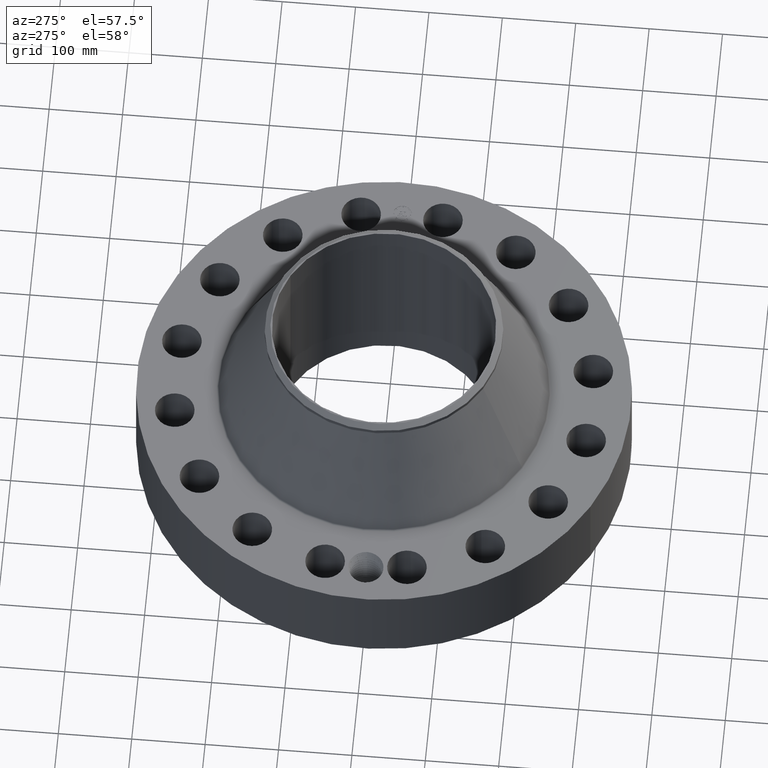
[diagram: clean part render]
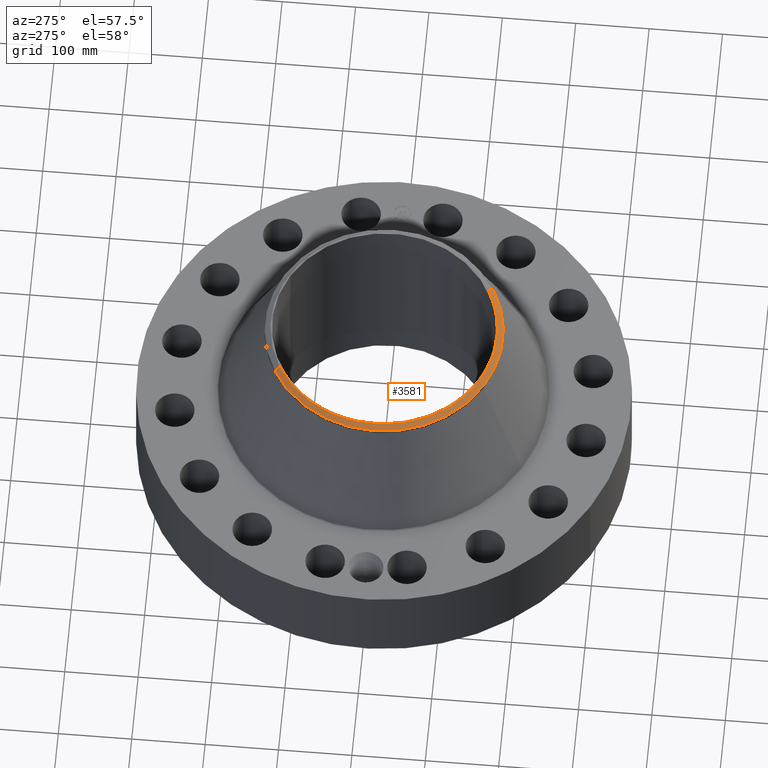
[diagram: same view with one face highlighted and labeled with its STEP entity id]
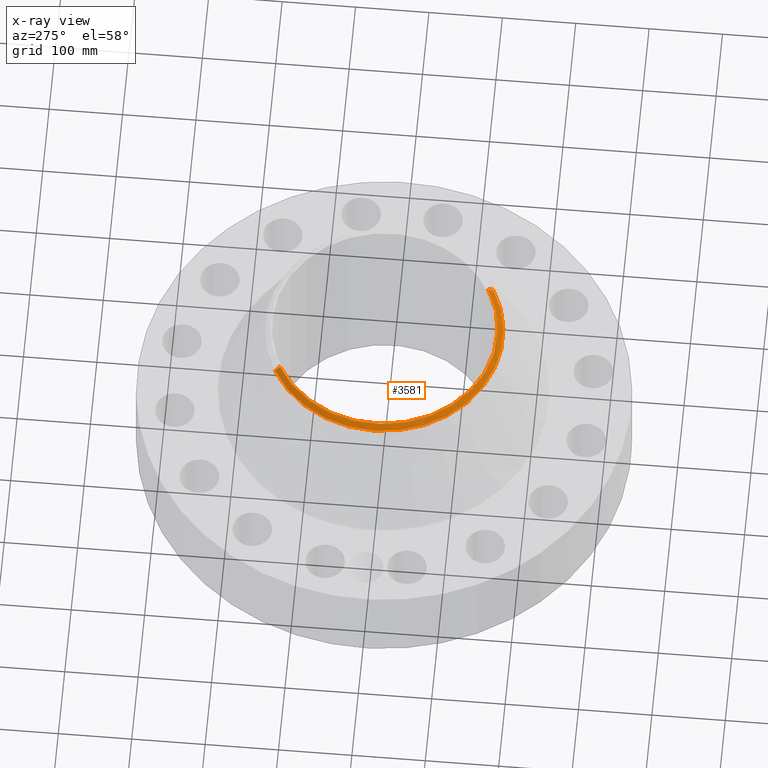
[diagram: x-ray of the same camera — body ghosted, the highlighted face saturated]
A machine part, auxiliary view. The second image highlights one B-rep face of the part: STEP entity #3581.
The next image is the same camera in x-ray: the body ghosted, the highlighted face saturated — about 0% of this face is hidden behind the body in this view.
In plain terms, the highlighted conical surface has half-angle 52.5 deg.
Its self-contained STEP definition (entity closure, byte-faithful):
#2710=AXIS2_PLACEMENT_3D('Circle Axis2P3D',#2708,#2709,$) ;
#3546=AXIS2_PLACEMENT_3D('Cone Axis2P3D',#3543,#3544,#3545) ;
#3564=AXIS2_PLACEMENT_3D('Circle Axis2P3D',#3562,#3563,$) ;
#3571=AXIS2_PLACEMENT_3D('Circle Axis2P3D',#3569,#3570,$) ;
#2703=CARTESIAN_POINT('Vertex',(2.91430327405,-5.33459636049,11.37)) ;
#2705=CARTESIAN_POINT('Vertex',(-2.91430327405,5.33459636049,11.37)) ;
#2708=CARTESIAN_POINT('Axis2P3D Location',(0.,0.,11.37)) ;
#3543=CARTESIAN_POINT('Axis2P3D Location',(0.,0.,11.37)) ;
#3548=CARTESIAN_POINT('Line Origine',(2.98532054133,-5.46459259628,11.2563359137)) ;
#3552=CARTESIAN_POINT('Vertex',(3.05633780861,-5.59458883207,11.1426718274)) ;
#3555=CARTESIAN_POINT('Line Origine',(-2.98532054133,5.46459259628,11.2563359137)) ;
#3559=CARTESIAN_POINT('Vertex',(-3.05633780861,5.59458883207,11.1426718274)) ;
#3562=CARTESIAN_POINT('Axis2P3D Location',(0.,0.,11.1426718274)) ;
#3566=CARTESIAN_POINT('Vertex',(-3.05633780861,-5.59458883207,11.1426718274)) ;
#3569=CARTESIAN_POINT('Axis2P3D Location',(0.,0.,11.1426718274)) ;
#2709=DIRECTION('Axis2P3D Direction',(0.,0.,-0.0393700787402)) ;
#3544=DIRECTION('Axis2P3D Direction',(-0.,-0.,-0.0393700787402)) ;
#3545=DIRECTION('Axis2P3D XDirection',(-0.0188750212049,0.0345504945626,0.)) ;
#3549=DIRECTION('Vector Direction',(0.014974561121,-0.02741075027,-0.023966985394)) ;
#3556=DIRECTION('Vector Direction',(-0.014974561121,0.02741075027,-0.023966985394)) ;
#3563=DIRECTION('Axis2P3D Direction',(0.,0.,-0.0393700787402)) ;
#3570=DIRECTION('Axis2P3D Direction',(0.,0.,-0.0393700787402)) ;
#3550=VECTOR('Line Direction',#3549,0.0393700787402) ;
#3557=VECTOR('Line Direction',#3556,0.0393700787402) ;
#3575=ORIENTED_EDGE('',*,*,#3554,.F.) ;
#3576=ORIENTED_EDGE('',*,*,#2712,.F.) ;
#3577=ORIENTED_EDGE('',*,*,#3561,.T.) ;
#3578=ORIENTED_EDGE('',*,*,#3568,.T.) ;
#3579=ORIENTED_EDGE('',*,*,#3573,.F.) ;
#3581=ADVANCED_FACE('PartBody',(#3580),#3547,.T.) ;
#2711=CIRCLE('generated circle',#2710,6.0787401575) ;
#3565=CIRCLE('generated circle',#3564,6.37500000003) ;
#3572=CIRCLE('generated circle',#3571,6.37500000003) ;
#3547=CONICAL_SURFACE('Cone',#3546,6.0787401575,0.916297857297) ;
#2712=EDGE_CURVE('',#2706,#2704,#2711,.F.) ;
#3554=EDGE_CURVE('',#2704,#3553,#3551,.T.) ;
#3561=EDGE_CURVE('',#2706,#3560,#3558,.T.) ;
#3568=EDGE_CURVE('',#3560,#3567,#3565,.F.) ;
#3573=EDGE_CURVE('',#3553,#3567,#3572,.T.) ;
#3574=EDGE_LOOP('',(#3575,#3576,#3577,#3578,#3579)) ;
#3580=FACE_OUTER_BOUND('',#3574,.T.) ;
#3551=LINE('Line',#3548,#3550) ;
#3558=LINE('Line',#3555,#3557) ;
#2704=VERTEX_POINT('',#2703) ;
#2706=VERTEX_POINT('',#2705) ;
#3553=VERTEX_POINT('',#3552) ;
#3560=VERTEX_POINT('',#3559) ;
#3567=VERTEX_POINT('',#3566) ;